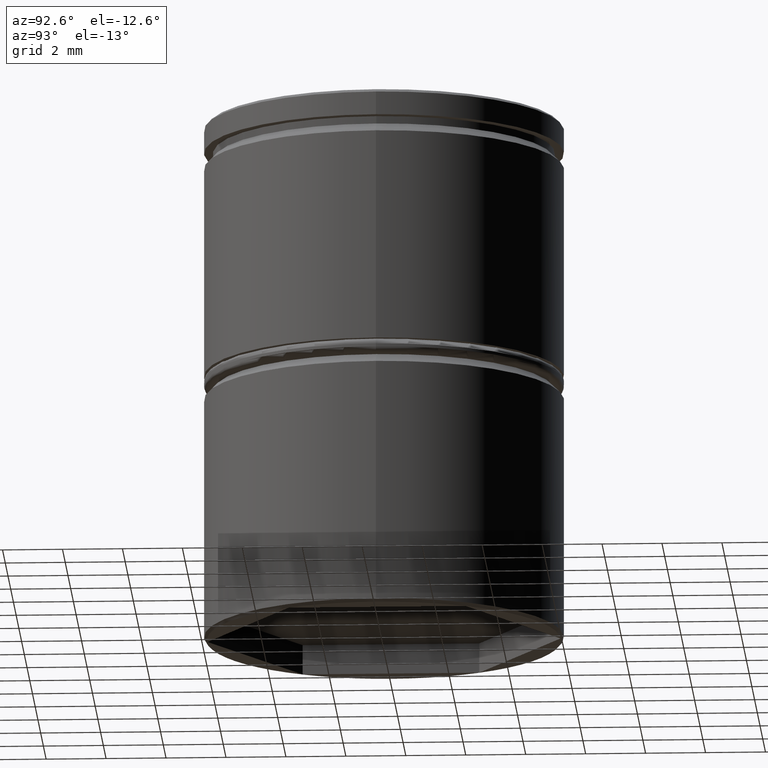
[diagram: clean part render]
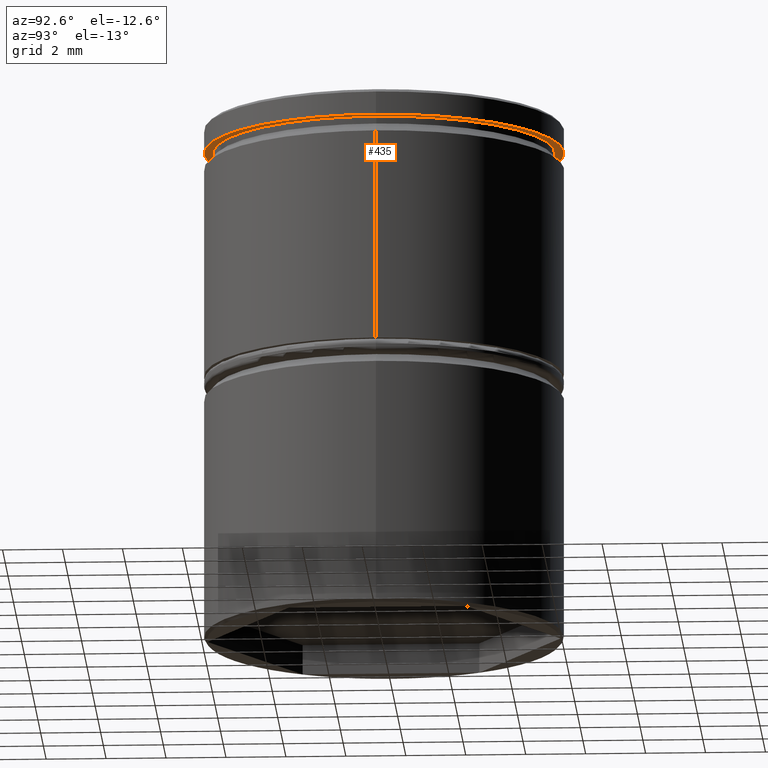
[diagram: same view with one face highlighted and labeled with its STEP entity id]
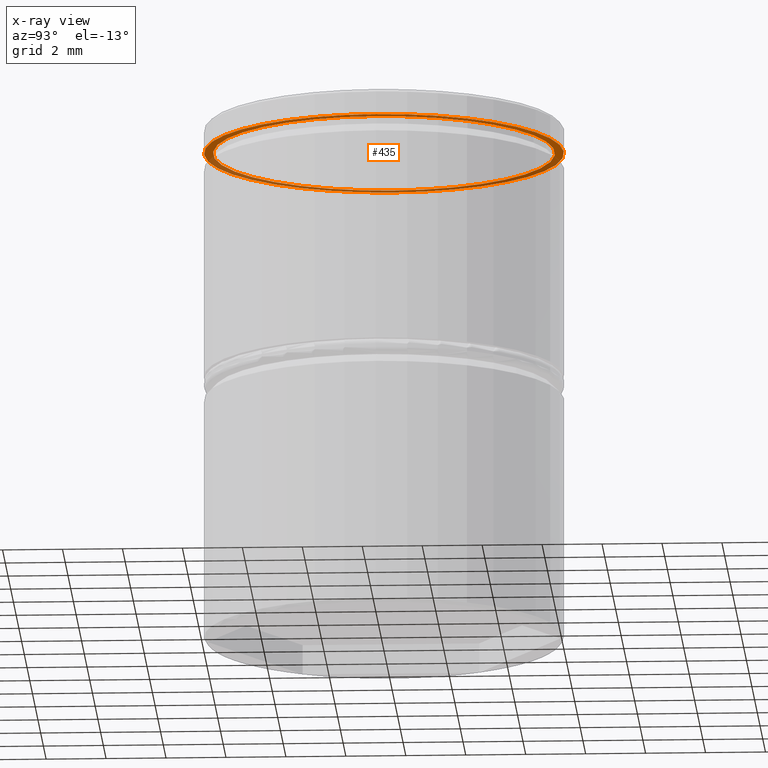
[diagram: x-ray of the same camera — body ghosted, the highlighted face saturated]
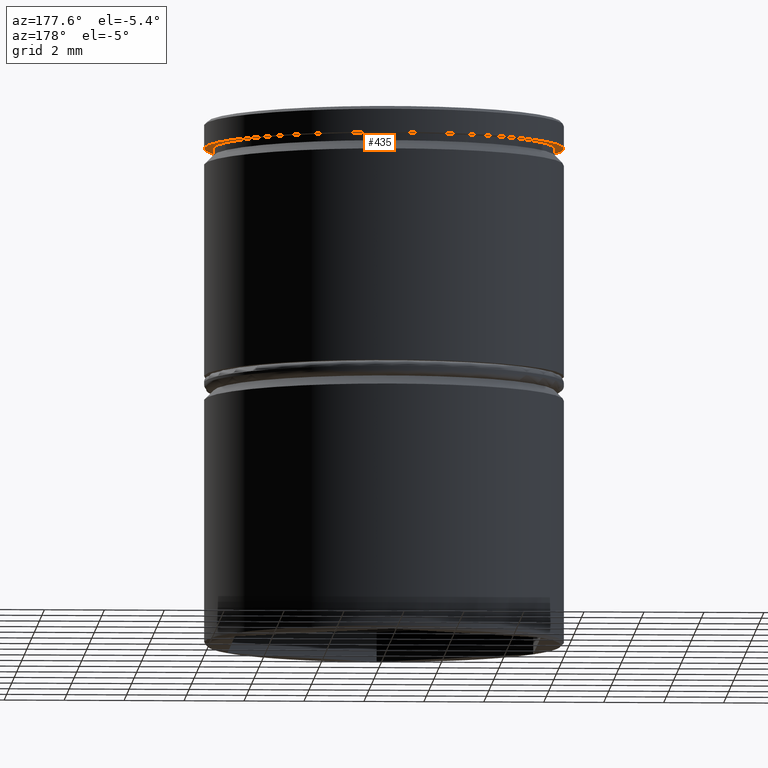
[diagram: same view with one face highlighted and labeled with its STEP entity id]
A machine part, auxiliary view. The second image highlights one B-rep face of the part: STEP entity #435.
The next image is the same camera in x-ray: the body ghosted, the highlighted face saturated — about 45% of this face is hidden behind the body in this view.
A second angle (auxiliary view) of the same face is appended — the face is thin or edge-on in the first view.
In plain terms, the highlighted planar face has unit normal (0, 0, -1).
Its self-contained STEP definition (entity closure, byte-faithful):
#13 = CIRCLE ( 'NONE', #308, 5.700000000000000178 ) ;
#14 = DIRECTION ( 'NONE',  ( 1.000000000000000000, 0.000000000000000000, 0.000000000000000000 ) ) ;
#19 = FACE_BOUND ( 'NONE', #894, .T. ) ;
#31 = DIRECTION ( 'NONE',  ( 1.000000000000000000, 0.000000000000000000, 0.000000000000000000 ) ) ;
#101 = PLANE ( 'NONE',  #753 ) ;
#129 = AXIS2_PLACEMENT_3D ( 'NONE', #965, #248, #322 ) ;
#146 = ORIENTED_EDGE ( 'NONE', *, *, #443, .T. ) ;
#164 = ORIENTED_EDGE ( 'NONE', *, *, #489, .F. ) ;
#185 = CARTESIAN_POINT ( 'NONE',  ( 6.000000000000000000, 0.000000000000000000, -0.8749999999999998890 ) ) ;
#248 = DIRECTION ( 'NONE',  ( -0.000000000000000000, -0.000000000000000000, 1.000000000000000000 ) ) ;
#291 = EDGE_CURVE ( 'NONE', #297, #812, #375, .T. ) ;
#297 = VERTEX_POINT ( 'NONE', #185 ) ;
#308 = AXIS2_PLACEMENT_3D ( 'NONE', #659, #683, #31 ) ;
#322 = DIRECTION ( 'NONE',  ( 1.000000000000000000, 0.000000000000000000, 0.000000000000000000 ) ) ;
#337 = EDGE_CURVE ( 'NONE', #596, #445, #613, .T. ) ;
#339 = DIRECTION ( 'NONE',  ( 0.000000000000000000, 0.000000000000000000, -1.000000000000000000 ) ) ;
#375 = CIRCLE ( 'NONE', #129, 6.000000000000000000 ) ;
#435 = ADVANCED_FACE ( 'NONE', ( #19, #559 ), #101, .T. ) ;
#443 = EDGE_CURVE ( 'NONE', #445, #596, #13, .T. ) ;
#445 = VERTEX_POINT ( 'NONE', #499 ) ;
#451 = AXIS2_PLACEMENT_3D ( 'NONE', #642, #476, #14 ) ;
#476 = DIRECTION ( 'NONE',  ( -0.000000000000000000, -0.000000000000000000, 1.000000000000000000 ) ) ;
#489 = EDGE_CURVE ( 'NONE', #812, #297, #790, .T. ) ;
#499 = CARTESIAN_POINT ( 'NONE',  ( 5.700000000000000178, 0.000000000000000000, -0.8749999999999998890 ) ) ;
#559 = FACE_OUTER_BOUND ( 'NONE', #647, .T. ) ;
#596 = VERTEX_POINT ( 'NONE', #1006 ) ;
#613 = CIRCLE ( 'NONE', #451, 5.700000000000000178 ) ;
#636 = ORIENTED_EDGE ( 'NONE', *, *, #291, .F. ) ;
#642 = CARTESIAN_POINT ( 'NONE',  ( 0.000000000000000000, 0.000000000000000000, -0.8749999999999998890 ) ) ;
#647 = EDGE_LOOP ( 'NONE', ( #636, #164 ) ) ;
#652 = CARTESIAN_POINT ( 'NONE',  ( 0.000000000000000000, 6.000000000000000000, -0.8749999999999998890 ) ) ;
#659 = CARTESIAN_POINT ( 'NONE',  ( 0.000000000000000000, 0.000000000000000000, -0.8749999999999998890 ) ) ;
#672 = DIRECTION ( 'NONE',  ( -0.000000000000000000, -0.000000000000000000, 1.000000000000000000 ) ) ;
#683 = DIRECTION ( 'NONE',  ( -0.000000000000000000, -0.000000000000000000, 1.000000000000000000 ) ) ;
#753 = AXIS2_PLACEMENT_3D ( 'NONE', #652, #339, #885 ) ;
#755 = CARTESIAN_POINT ( 'NONE',  ( 0.000000000000000000, 0.000000000000000000, -0.8749999999999998890 ) ) ;
#790 = CIRCLE ( 'NONE', #805, 6.000000000000000000 ) ;
#805 = AXIS2_PLACEMENT_3D ( 'NONE', #755, #672, #841 ) ;
#812 = VERTEX_POINT ( 'NONE', #895 ) ;
#841 = DIRECTION ( 'NONE',  ( 1.000000000000000000, 0.000000000000000000, 0.000000000000000000 ) ) ;
#885 = DIRECTION ( 'NONE',  ( -1.000000000000000000, 0.000000000000000000, -0.000000000000000000 ) ) ;
#894 = EDGE_LOOP ( 'NONE', ( #146, #909 ) ) ;
#895 = CARTESIAN_POINT ( 'NONE',  ( -6.000000000000000000, 7.347880794884119736E-16, -0.8749999999999998890 ) ) ;
#909 = ORIENTED_EDGE ( 'NONE', *, *, #337, .T. ) ;
#965 = CARTESIAN_POINT ( 'NONE',  ( 0.000000000000000000, 0.000000000000000000, -0.8749999999999998890 ) ) ;
#1006 = CARTESIAN_POINT ( 'NONE',  ( -5.700000000000000178, 6.980486755139913108E-16, -0.8749999999999998890 ) ) ;